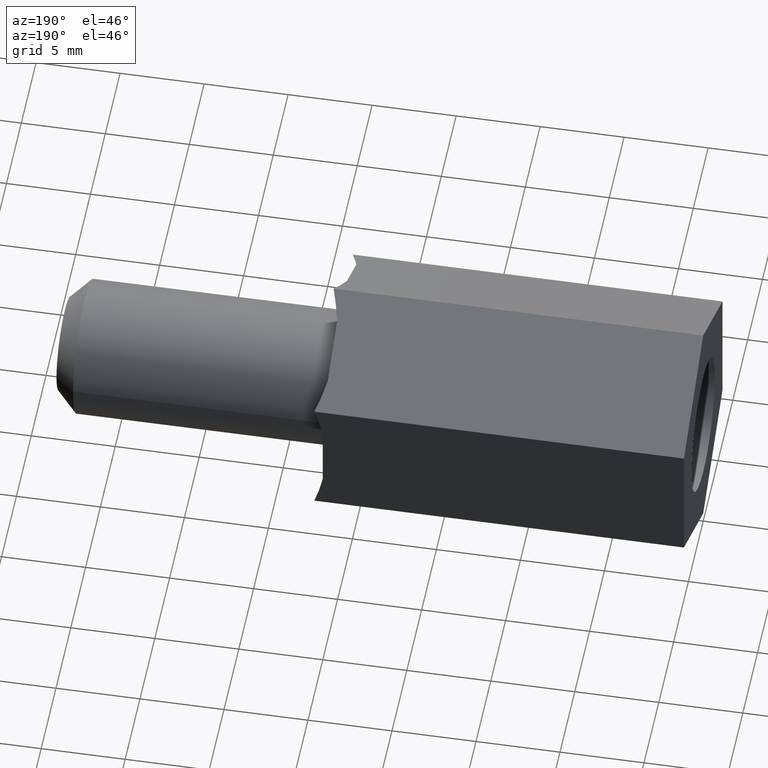
[diagram: clean part render]
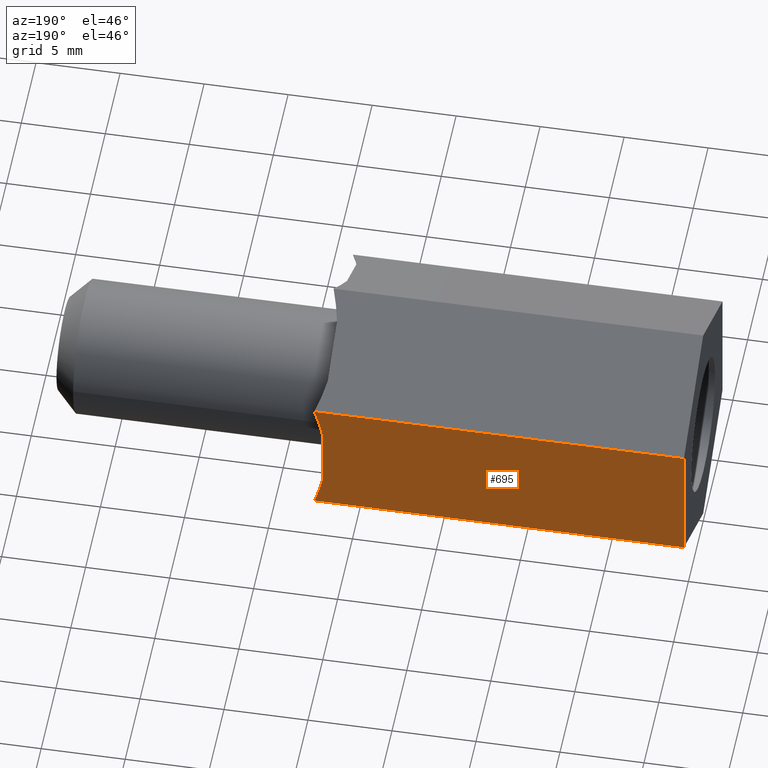
[diagram: same view with one face highlighted and labeled with its STEP entity id]
A machine part, auxiliary view. The second image highlights one B-rep face of the part: STEP entity #695.
In plain terms, the highlighted face is a freeform B-spline surface patch.
Its self-contained STEP definition (entity closure, byte-faithful):
#587=CARTESIAN_POINT('',(22.0,6.500030203193870,3.752817437281950));
#588=VERTEX_POINT('',#587);
#604=CARTESIAN_POINT('',(0.0,6.500000000000000,3.752800000000000));
#605=VERTEX_POINT('',#604);
#606=CARTESIAN_POINT('',(22.0,6.500030203193870,3.752817437281950));
#607=CARTESIAN_POINT('',(0.0,6.500000000000000,3.752800000000000));
#608=QUASI_UNIFORM_CURVE('',1,(#606,#607),.UNSPECIFIED.,.F.,.U.);
#609=EDGE_CURVE('',#588,#605,#608,.T.);
#644=CARTESIAN_POINT('',(-1.098899957359732,6.500000000000000,-4.127723885450818));
#645=CARTESIAN_POINT('',(-1.098899957359732,6.500000000000000,4.127724086070669));
#646=CARTESIAN_POINT('',(23.098900547445719,6.500000000000000,-4.127723885450818));
#647=CARTESIAN_POINT('',(23.098900547445719,6.500000000000000,4.127724086070669));
#648=B_SPLINE_SURFACE_WITH_KNOTS('',1,1,((#644,#646),(#645,#647)),.UNSPECIFIED.,.F.,.F.,.U.,(2,2),(2,2),(0.0,8.255447971521488),(0.0,24.197800504805450),.UNSPECIFIED.);
#649=CARTESIAN_POINT('',(22.0,6.500030202791479,-3.752817437978915));
#650=VERTEX_POINT('',#649);
#651=CARTESIAN_POINT('',(21.500000000000000,6.500000000000000,-1.820027472320130));
#652=VERTEX_POINT('',#651);
#653=CARTESIAN_POINT('',(22.0,6.500030202791479,-3.752817437978915));
#654=CARTESIAN_POINT('',(21.899631590665130,6.500025379651408,-3.449475447495880));
#655=CARTESIAN_POINT('',(21.807243652986180,6.500020538000871,-3.142805210203885));
#656=CARTESIAN_POINT('',(21.642876491758130,6.500010807100440,-2.520935418636463));
#657=CARTESIAN_POINT('',(21.571798829820828,6.500005968104968,-2.208933825983257));
#658=CARTESIAN_POINT('',(21.509096226761379,6.500000774035588,-1.870522637045751));
#659=CARTESIAN_POINT('',(21.504505260709390,6.500000386912884,-1.845278977144830));
#660=CARTESIAN_POINT('',(21.500000000000000,6.500000000000000,-1.820027472320130));
#661=B_SPLINE_CURVE_WITH_KNOTS('',3,(#653,#654,#655,#656,#657,#658,#659,#660),.UNSPECIFIED.,.F.,.U.,(4,2,2,4),(0.000006476155006,0.125000000000000,0.250000000000000,0.260072590094713),.UNSPECIFIED.);
#662=EDGE_CURVE('',#650,#652,#661,.T.);
#663=ORIENTED_EDGE('',*,*,#662,.F.);
#664=CARTESIAN_POINT('',(0.0,6.500000000000000,-3.752800000000000));
#665=VERTEX_POINT('',#664);
#666=CARTESIAN_POINT('',(22.0,6.500030202791479,-3.752817437978915));
#667=CARTESIAN_POINT('',(0.0,6.500000000000000,-3.752800000000000));
#668=QUASI_UNIFORM_CURVE('',1,(#666,#667),.UNSPECIFIED.,.F.,.U.);
#669=EDGE_CURVE('',#650,#665,#668,.T.);
#670=ORIENTED_EDGE('',*,*,#669,.T.);
#671=CARTESIAN_POINT('',(0.0,6.500000000000000,3.752800000000000));
#672=CARTESIAN_POINT('',(0.0,6.500000000000000,-3.752800000000000));
#673=QUASI_UNIFORM_CURVE('',1,(#671,#672),.UNSPECIFIED.,.F.,.U.);
#674=EDGE_CURVE('',#605,#665,#673,.T.);
#675=ORIENTED_EDGE('',*,*,#674,.F.);
#676=ORIENTED_EDGE('',*,*,#609,.F.);
#677=CARTESIAN_POINT('',(21.500000000000000,6.500000000000000,1.820027472320130));
#678=VERTEX_POINT('',#677);
#679=CARTESIAN_POINT('',(21.500000000000000,6.500000000000000,1.820027472320130));
#680=CARTESIAN_POINT('',(21.505351194396152,6.500000459544830,1.850018763682597));
#681=CARTESIAN_POINT('',(21.510819255607551,6.500000919051054,1.879977187576044));
#682=CARTESIAN_POINT('',(21.633328553415019,6.500011001369398,2.536659269420824));
#683=CARTESIAN_POINT('',(21.800322370430141,6.500020607680061,3.149334329523952));
#684=CARTESIAN_POINT('',(22.0,6.500030203193870,3.752817437281950));
#685=B_SPLINE_CURVE_WITH_KNOTS('',3,(#679,#680,#681,#682,#683,#684),.UNSPECIFIED.,.F.,.U.,(4,2,4),(0.738063403781413,0.750000000000000,0.999993489244017),.UNSPECIFIED.);
#686=EDGE_CURVE('',#678,#588,#685,.T.);
#687=ORIENTED_EDGE('',*,*,#686,.F.);
#688=CARTESIAN_POINT('',(21.500000000000000,6.500000000000000,-1.820027472320130));
#689=CARTESIAN_POINT('',(21.500000000000000,6.500000000000000,1.820027472320130));
#690=QUASI_UNIFORM_CURVE('',1,(#688,#689),.UNSPECIFIED.,.F.,.U.);
#691=EDGE_CURVE('',#652,#678,#690,.T.);
#692=ORIENTED_EDGE('',*,*,#691,.F.);
#693=EDGE_LOOP('',(#663,#670,#675,#676,#687,#692));
#694=FACE_OUTER_BOUND('',#693,.T.);
#695=ADVANCED_FACE('',(#694),#648,.T.);